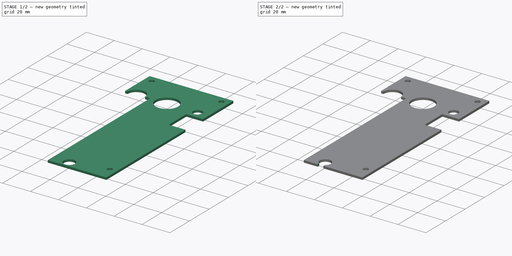
[diagram: build sequence overview — one tinted view per stage of 2, left to right]
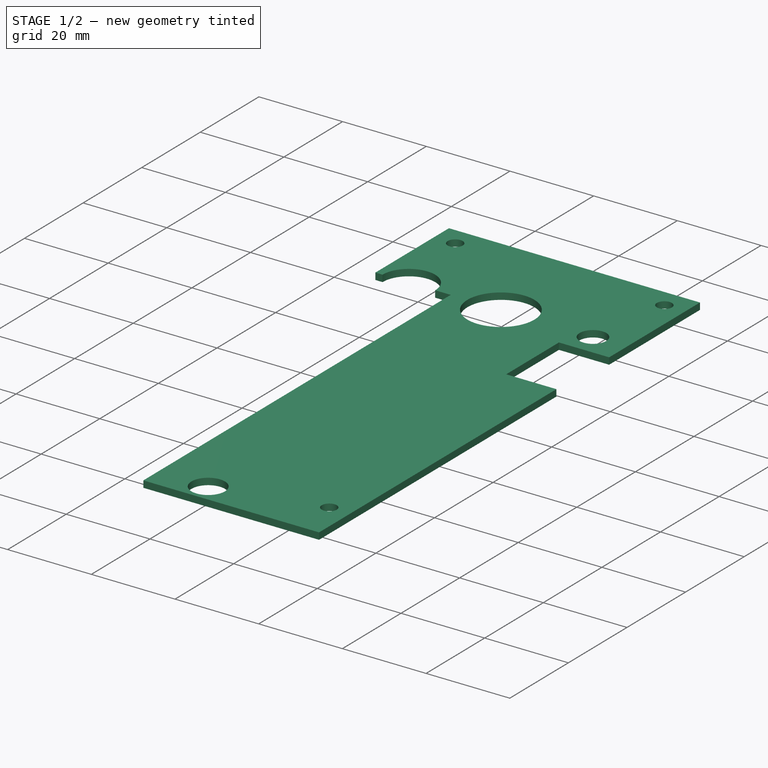
[diagram: stage 1 of 2 — iso view after this stage's code; geometry added in this stage tinted green]
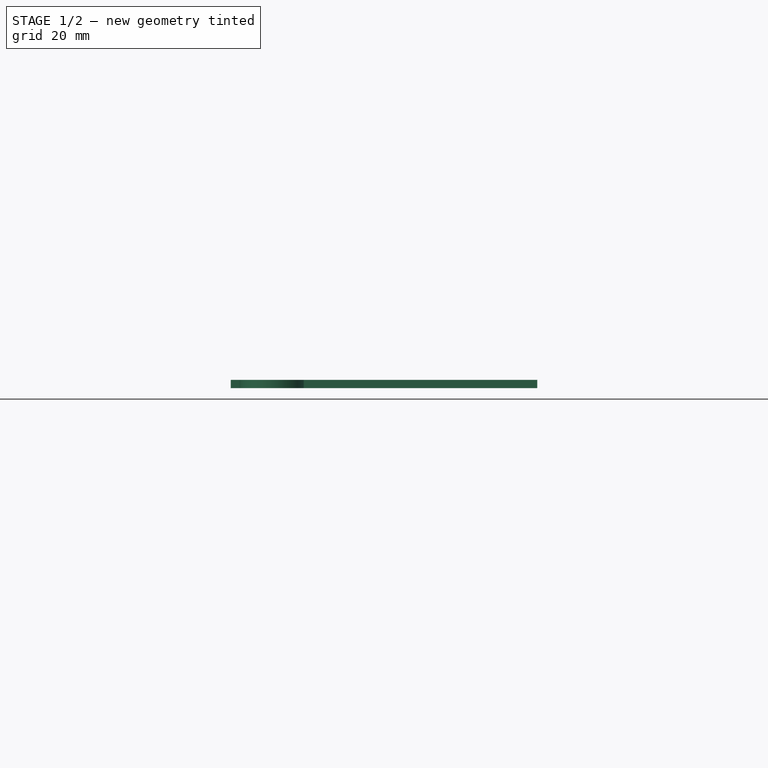
[diagram: stage 1 of 2 — front view after this stage's code; geometry added in this stage tinted green]
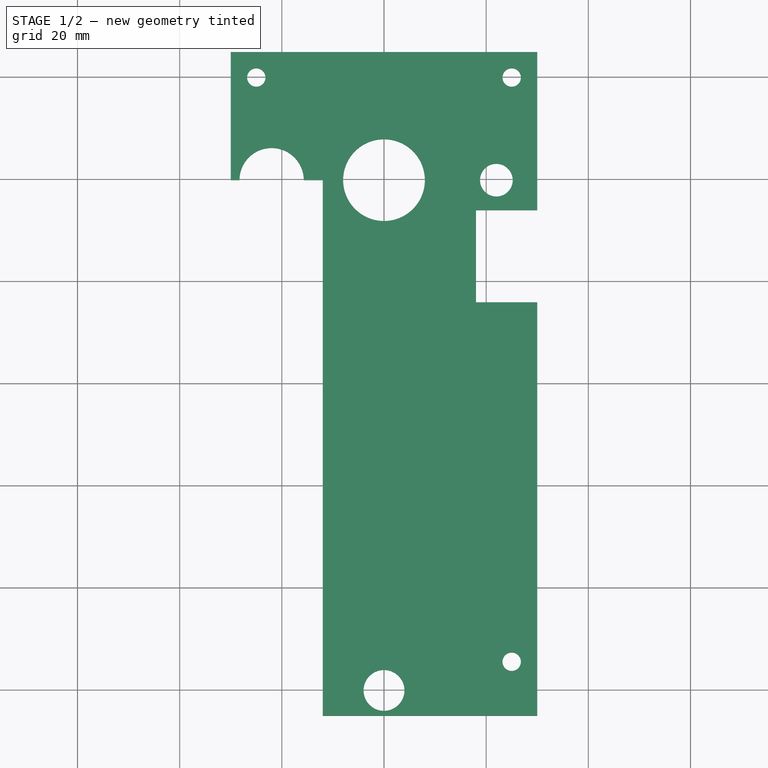
[diagram: stage 1 of 2 — top view after this stage's code; geometry added in this stage tinted green]
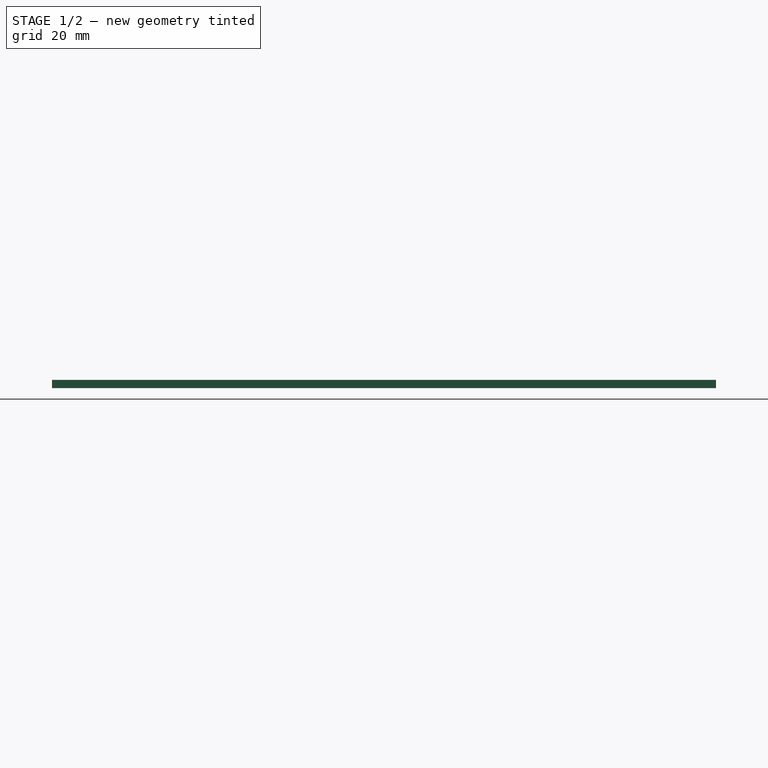
[diagram: stage 1 of 2 — right view after this stage's code; geometry added in this stage tinted green]
FCSTD DOCUMENT  (FreeCAD 0.18.4R)
Label: acrylic_head_pnp_2
License: All rights reserved
LicenseURL: http://en.wikipedia.org/wiki/All_rights_reserved
objects: Sketcher::SketchObject×2, PartDesign::Pad×1, PartDesign::Pocket×1, PartDesign::Body×1
note: 7 computed .brp shape members not serialized (recipe doc carries the construction recipe); baked Part::Feature solids carry a one-line shape summary decoded from their .brp

FEATURE [Sketcher::SketchObject] Sketch
  MapMode = 5
  Support = -> [XY_Plane]
  sketch-geometry (20):
    g0: Circle CenterX=0 CenterY=39.8022 CenterZ=0 NormalX=0 NormalY=0 NormalZ=1 AngleXU=0 Radius=8
    g1: Circle CenterX=22 CenterY=39.8022 CenterZ=0 NormalX=0 NormalY=0 NormalZ=1 AngleXU=0 Radius=3.2
    g2: ArcOfCircle CenterX=-22 CenterY=39.8022 CenterZ=0 NormalX=0 NormalY=0 NormalZ=1 AngleXU=0 Radius=6.28949 StartAngle=4e-16 EndAngle=3.14159
    g3: LineSegment StartX=-28.2895 StartY=39.8022 StartZ=0 EndX=-30 EndY=39.8022 EndZ=0
    g4: LineSegment StartX=-15.7105 StartY=39.8022 StartZ=0 EndX=-12 EndY=39.8022 EndZ=0
    g5: LineSegment StartX=-30 StartY=39.8022 StartZ=0 EndX=-30 EndY=64.8952 EndZ=0
    g6: LineSegment StartX=-12 StartY=39.8022 StartZ=0 EndX=-12 EndY=-8.19781 EndZ=0
    g7: LineSegment StartX=-12 StartY=-49.4148 StartZ=0 EndX=-12 EndY=-65.1048 EndZ=0
    g8: LineSegment StartX=30 StartY=-65.1048 StartZ=0 EndX=-12 EndY=-65.1048 EndZ=0
    g9: LineSegment StartX=30 StartY=33.8952 StartZ=0 EndX=18 EndY=33.8952 EndZ=0
    g10: LineSegment StartX=30 StartY=33.8952 StartZ=0 EndX=30 EndY=64.8952 EndZ=0
    g11: LineSegment StartX=18 StartY=33.8952 StartZ=0 EndX=18 EndY=15.8952 EndZ=0
    g12: LineSegment StartX=18 StartY=15.8952 StartZ=0 EndX=30 EndY=15.8952 EndZ=0
    g13: Circle CenterX=0 CenterY=-60.1048 CenterZ=0 NormalX=0 NormalY=0 NormalZ=1 AngleXU=0 Radius=4
    g14: Circle CenterX=25 CenterY=-54.4948 CenterZ=0 NormalX=0 NormalY=0 NormalZ=1 AngleXU=0 Radius=1.8
    g15: Circle CenterX=25 CenterY=59.8952 CenterZ=0 NormalX=0 NormalY=0 NormalZ=1 AngleXU=0 Radius=1.8
    g16: LineSegment StartX=30 StartY=15.8952 StartZ=0 EndX=30 EndY=-65.1048 EndZ=0
    g17: LineSegment StartX=-30 StartY=64.8952 StartZ=0 EndX=30 EndY=64.8952 EndZ=0
    g18: Circle CenterX=-25 CenterY=59.8952 CenterZ=0 NormalX=0 NormalY=0 NormalZ=1 AngleXU=0 Radius=1.8
    g19: LineSegment StartX=-12 StartY=-8.19781 StartZ=0 EndX=-12 EndY=-49.4148 EndZ=0
  constraints (53):
    c: PointOnObject(g0,g-2)
    c: Radius(g0) = 8
    c: Radius(g1) = 3.2
    c: Horizontal(g0,g1)
    c: Coincident(g3,g2)
    c: Distance(g1,g2) = 44
    c: Coincident(g4,g2)
    c: Horizontal(g4)
    c: Horizontal(g3,g2)
    c: DistanceX(g3,g4) = 18
    c: Coincident(g5,g3)
    c: Vertical(g5)
    c: Coincident(g6,g4)
    c: Vertical(g6)
    c: DistanceY(g6,g6) = 48
    c: Horizontal(g3,g2)
    c: Horizontal(g0,g4)
    c: Coincident(g8,g7)
    c: Horizontal(g8)
    c: Horizontal(g9)
    c: Vertical(g10)
    c: Distance(g10) = 31
    c: Distance(g5,g10) = 60
    c: Coincident(g11,g9)
    c: Vertical(g11)
    c: Coincident(g12,g11)
    c: Horizontal(g12)
    c: Distance(g8,g10) = 130
    c: DistanceY(g11,g11) = 18
    c: Perpendicular(g8,g7)
    c: PointOnObject(g13,g-2)
    c: Distance(g13,g8) = 5
    c: Radius(g13) = 4
    c: Radius(g14) = 1.8
    c: Distance(g14,g8) = 10.61
    c: Distance(g15,g10) = 5
    c: Radius(g15) = 1.8
    c: Symmetric(g1,g2,g-2)
    c: Symmetric(g10,g5,g-2)
    c: Distance(g9) = 12
    c: Distance(g12) = 12
    c: Coincident(g10,g9)
    c: Coincident(g16,g12)
    c: Coincident(g16,g8)
    c: Vertical(g16)
    c: Coincident(g17,g5)
    c: Coincident(g17,g10)
    c: Radius(g18) = 1.8
    c: Distance(g18,g17) = 5
    c: Distance(g18,g5) = 5
    c: Coincident(g19,g6)
    c: Coincident(g19,g7)
    c: Vertical(g19)
FEATURE [PartDesign::Pad] Pad
  Length = 1.6
  Length2 = 100
  Profile = -> Sketch
  Type = 0
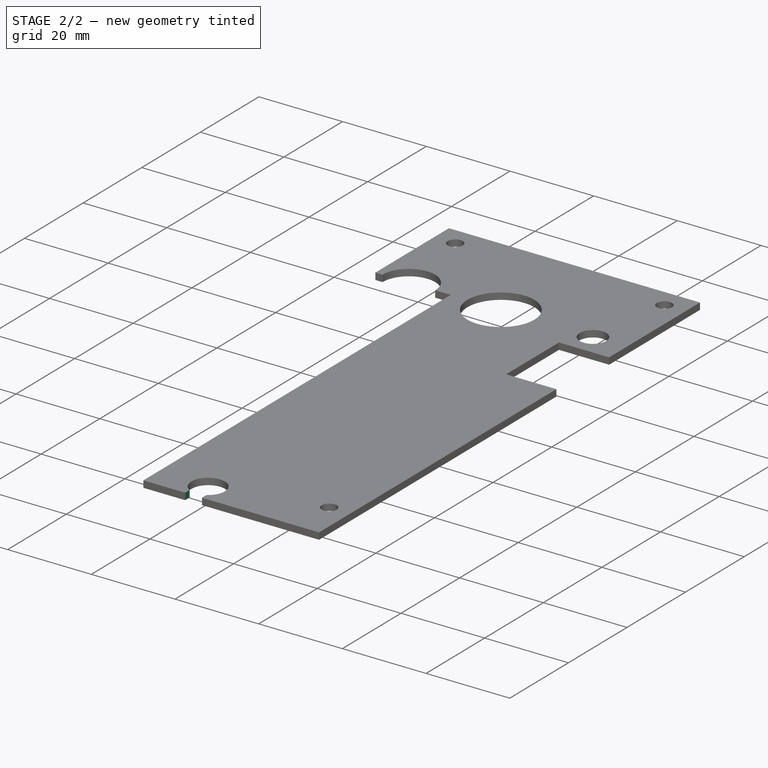
[diagram: stage 2 of 2 — iso view after this stage's code; geometry added in this stage tinted green]
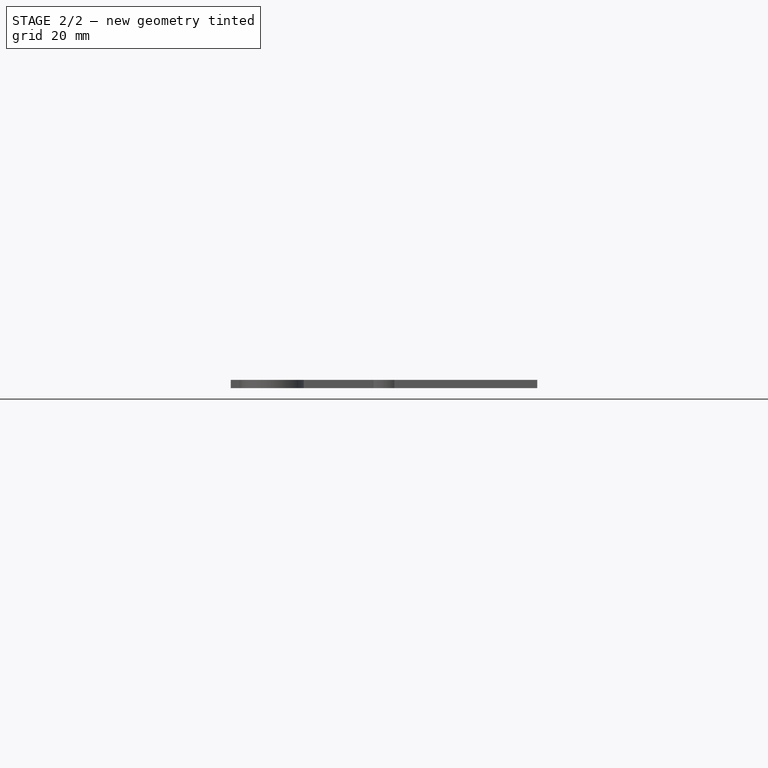
[diagram: stage 2 of 2 — front view after this stage's code; geometry added in this stage tinted green]
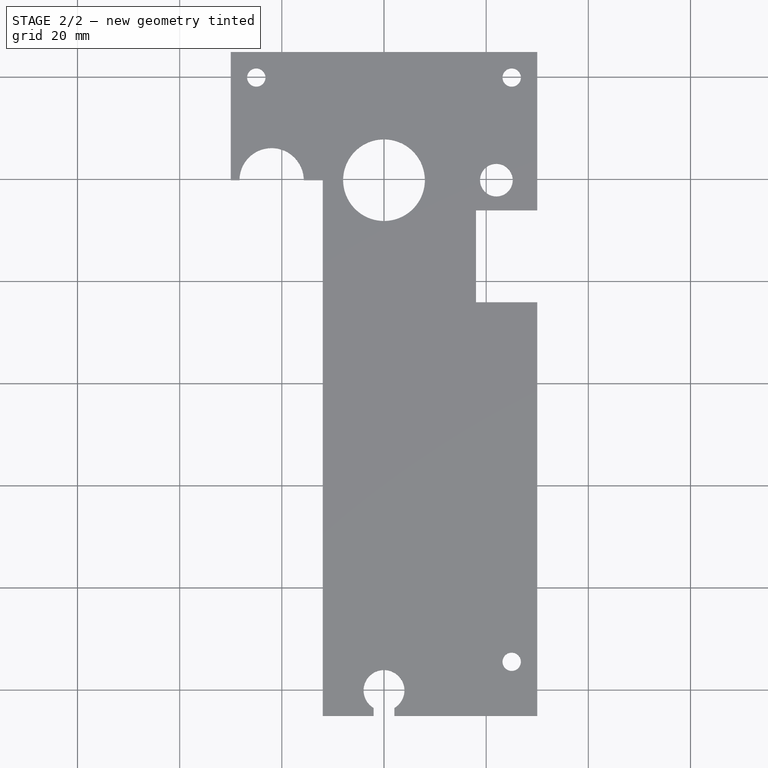
[diagram: stage 2 of 2 — top view after this stage's code; geometry added in this stage tinted green]
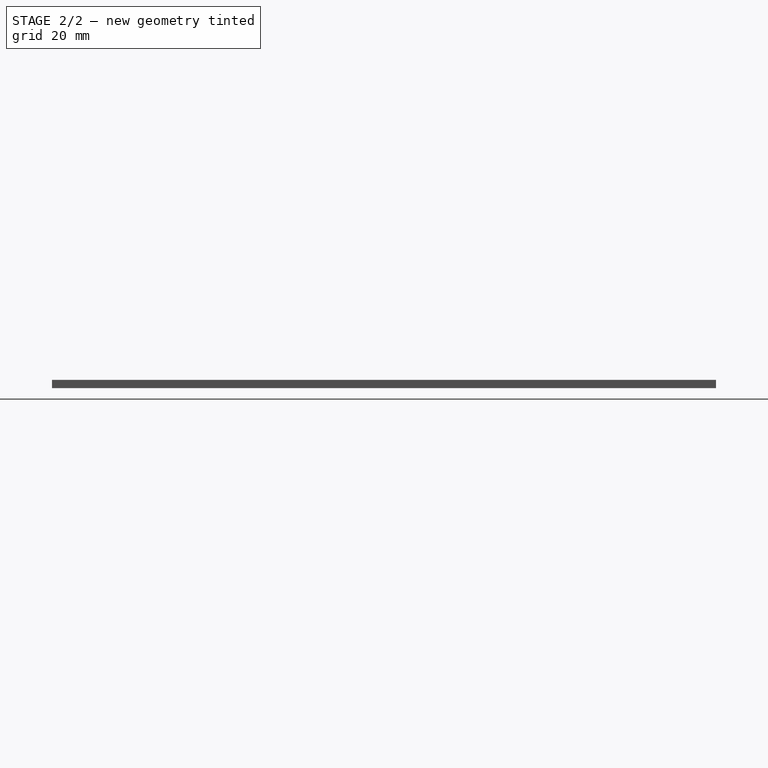
[diagram: stage 2 of 2 — right view after this stage's code; geometry added in this stage tinted green]
FEATURE [Sketcher::SketchObject] Sketch001
  MapMode = 5
  Placement = pos=(0,0,1.6) rot=(0,0,1;0rad)
  Support = -> [Pad]
  sketch-geometry (4):
    g0: LineSegment StartX=-2.02095 StartY=-65.5865 StartZ=0 EndX=2.02095 EndY=-65.5865 EndZ=0
    g1: LineSegment StartX=2.02095 StartY=-65.5865 StartZ=0 EndX=2.02095 EndY=-63.3971 EndZ=0
    g2: LineSegment StartX=2.02095 StartY=-63.3971 StartZ=0 EndX=-2.02095 EndY=-63.3971 EndZ=0
    g3: LineSegment StartX=-2.02095 StartY=-63.3971 StartZ=0 EndX=-2.02095 EndY=-65.5865 EndZ=0
  constraints (8):
    c: Coincident(g0,g1)
    c: Coincident(g1,g2)
    c: Coincident(g2,g3)
    c: Coincident(g3,g0)
    c: Horizontal(g0)
    c: Vertical(g1)
    c: Vertical(g3)
    c: Symmetric(g2,g1,g-2)
FEATURE [PartDesign::Pocket] Pocket
  BaseFeature = -> Pad
  Length = 5
  Length2 = 100
  Profile = -> Sketch001
  Type = 0
FEATURE [PartDesign::Body] Body
  Group = -> [Sketch,Pad,Sketch001,Pocket]
  Origin = -> Origin
  Tip = -> Pocket
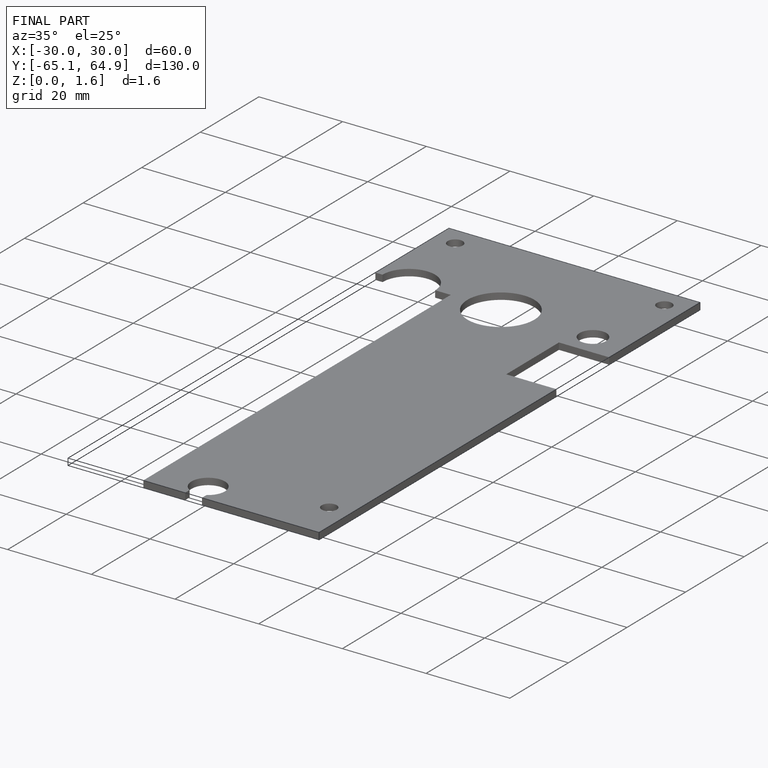
[diagram: finished part — iso view with bounding-box wireframe]
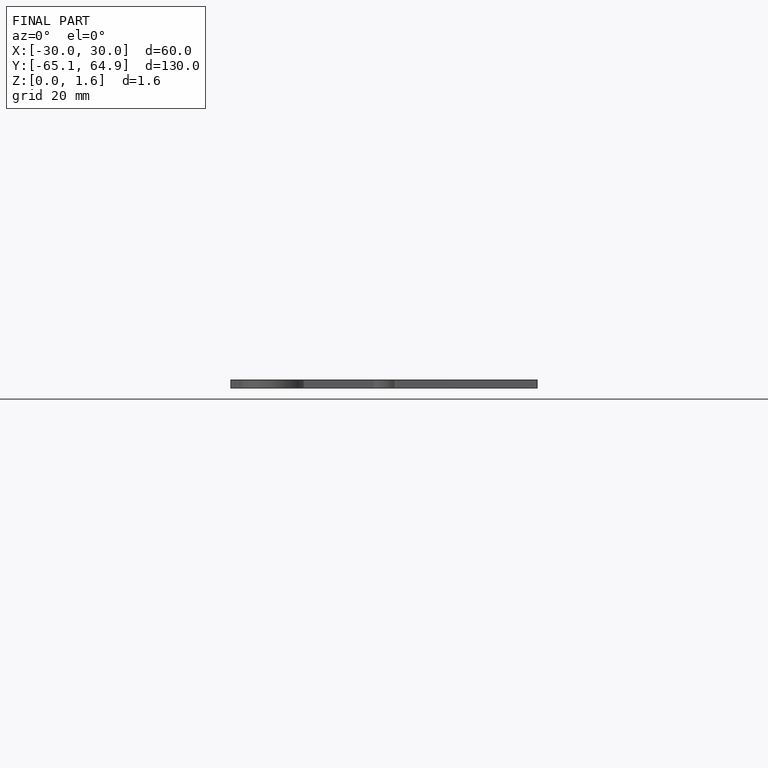
[diagram: finished part — front view with bounding-box wireframe]
